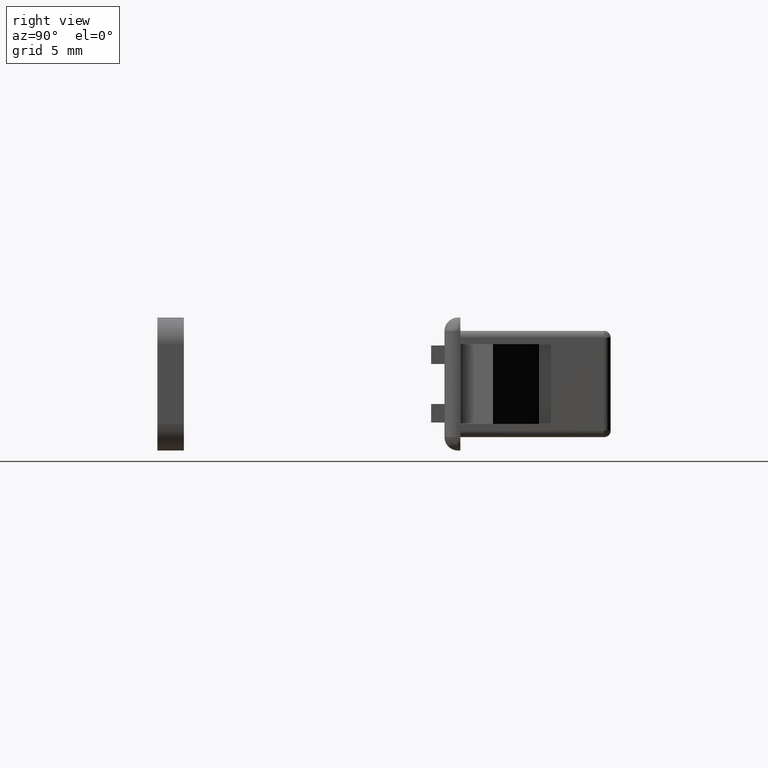
[diagram: clean part render]
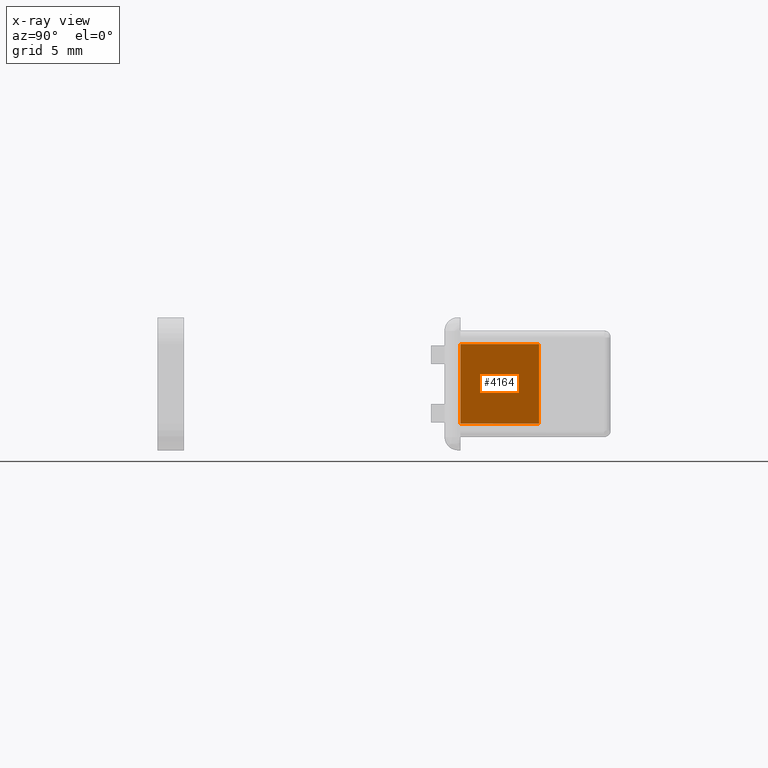
[diagram: x-ray — body ghosted, one internal face saturated and labeled with its STEP entity id]
A machine part, right view, then the same camera in x-ray: the body is ghosted and one INTERNAL B-rep face — a face not visible from any outside direction — is saturated and labeled: STEP entity #4164.
In plain terms, the highlighted face is a freeform B-spline surface patch.
Its self-contained STEP definition (entity closure, byte-faithful):
#3886=CARTESIAN_POINT('',(15.999966432461450,-11.300002999999959,-3.0));
#3887=VERTEX_POINT('',#3886);
#3893=CARTESIAN_POINT('',(14.250000000000000,-5.390003000000000,-3.0));
#3894=VERTEX_POINT('',#3893);
#3895=CARTESIAN_POINT('',(14.250000000000000,-5.390003000000000,-3.0));
#3896=CARTESIAN_POINT('',(15.999966432461450,-11.300002999999959,-3.0));
#3897=QUASI_UNIFORM_CURVE('',1,(#3895,#3896),.UNSPECIFIED.,.F.,.U.);
#3898=EDGE_CURVE('',#3894,#3887,#3897,.T.);
#3992=CARTESIAN_POINT('',(14.250000000000000,-5.390003000000000,3.0));
#3993=VERTEX_POINT('',#3992);
#3999=CARTESIAN_POINT('',(15.999966432461450,-11.300002999999959,3.0));
#4000=VERTEX_POINT('',#3999);
#4001=CARTESIAN_POINT('',(14.250000000000000,-5.390003000000000,3.0));
#4002=CARTESIAN_POINT('',(15.999966432461450,-11.300002999999959,3.0));
#4003=QUASI_UNIFORM_CURVE('',1,(#4001,#4002),.UNSPECIFIED.,.F.,.U.);
#4004=EDGE_CURVE('',#3993,#4000,#4003,.T.);
#4141=CARTESIAN_POINT('',(15.999966432461450,-11.300002999999959,3.0));
#4142=CARTESIAN_POINT('',(15.999966432461450,-11.300002999999959,-3.0));
#4143=QUASI_UNIFORM_CURVE('',1,(#4141,#4142),.UNSPECIFIED.,.F.,.U.);
#4144=EDGE_CURVE('',#4000,#3887,#4143,.T.);
#4149=CARTESIAN_POINT('',(16.087377278973879,-11.595207578388271,-3.299699988370836));
#4150=CARTESIAN_POINT('',(14.162589263009000,-5.094798791488321,-3.299699988370836));
#4151=CARTESIAN_POINT('',(16.087377278973879,-11.595207578388271,3.299700149303377));
#4152=CARTESIAN_POINT('',(14.162589263009000,-5.094798791488321,3.299700149303377));
#4153=B_SPLINE_SURFACE_WITH_KNOTS('',1,1,((#4149,#4151),(#4150,#4152)),.UNSPECIFIED.,.F.,.F.,.U.,(2,2),(2,2),(0.0,6.779389596653081),(0.0,6.599400137674213),.UNSPECIFIED.);
#4154=ORIENTED_EDGE('',*,*,#3898,.T.);
#4155=ORIENTED_EDGE('',*,*,#4144,.F.);
#4156=ORIENTED_EDGE('',*,*,#4004,.F.);
#4157=CARTESIAN_POINT('',(14.250000000000000,-5.390003000000000,3.0));
#4158=CARTESIAN_POINT('',(14.250000000000000,-5.390003000000000,-3.0));
#4159=QUASI_UNIFORM_CURVE('',1,(#4157,#4158),.UNSPECIFIED.,.F.,.U.);
#4160=EDGE_CURVE('',#3993,#3894,#4159,.T.);
#4161=ORIENTED_EDGE('',*,*,#4160,.T.);
#4162=EDGE_LOOP('',(#4154,#4155,#4156,#4161));
#4163=FACE_OUTER_BOUND('',#4162,.T.);
#4164=ADVANCED_FACE('',(#4163),#4153,.F.);